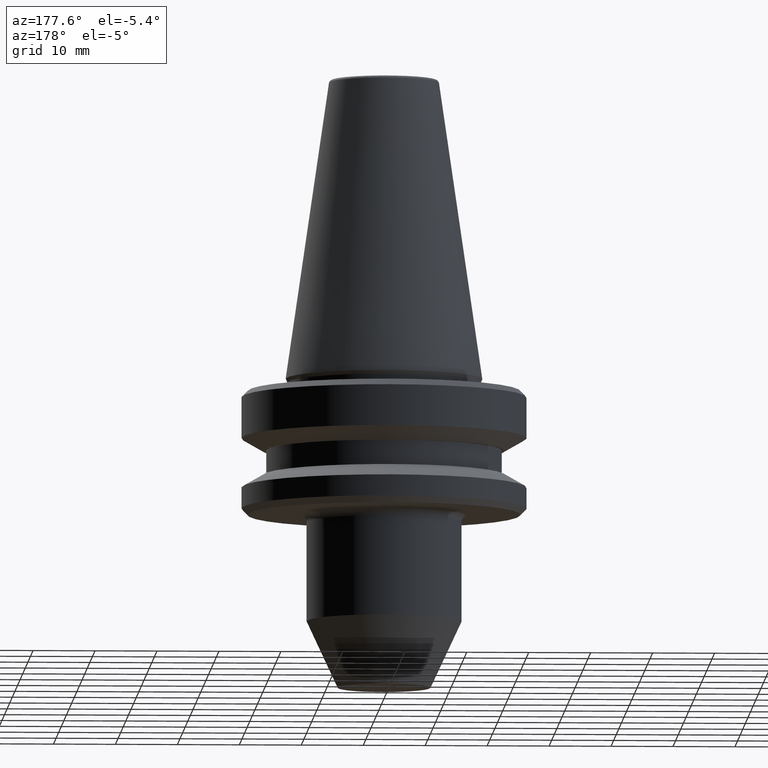
[diagram: clean part render]
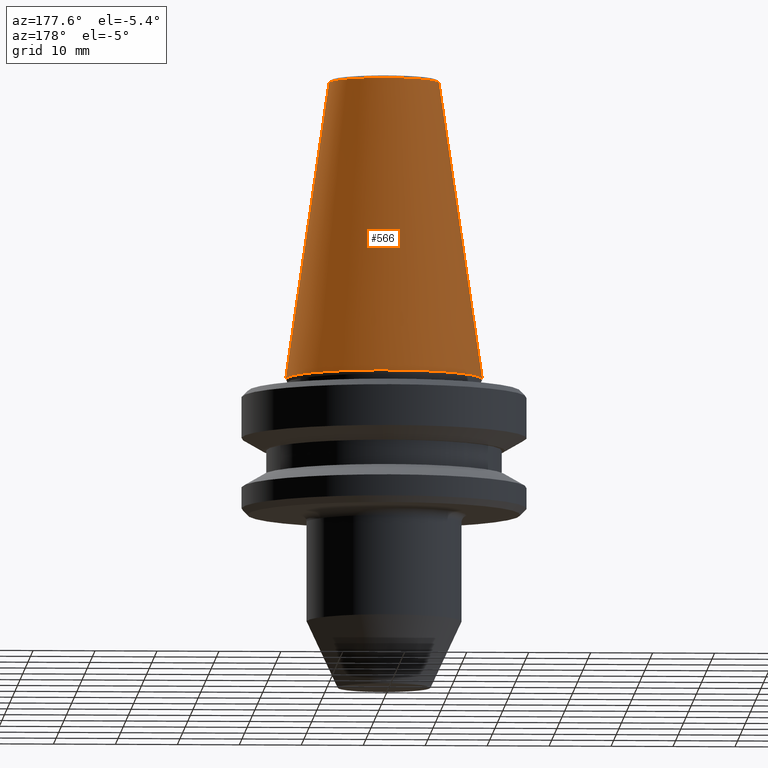
[diagram: same view with one face highlighted and labeled with its STEP entity id]
A machine part, auxiliary view. The second image highlights one B-rep face of the part: STEP entity #566.
In plain terms, the highlighted conical surface has half-angle 8.297 deg.
Its self-contained STEP definition (entity closure, byte-faithful):
#8 = DIRECTION ( 'NONE',  ( 0.0000000000000000000, 0.0000000000000000000, -1.000000000000000000 ) ) ;
#59 = VECTOR ( 'NONE', #317, 1000.000000000000000 ) ;
#86 = CARTESIAN_POINT ( 'NONE',  ( 8.878994820583409700, 1.515745026156880400E-015, 47.97215411344146900 ) ) ;
#90 = LINE ( 'NONE', #259, #514 ) ;
#142 = ORIENTED_EDGE ( 'NONE', *, *, #633, .F. ) ;
#202 = VERTEX_POINT ( 'NONE', #600 ) ;
#210 = EDGE_LOOP ( 'NONE', ( #410, #731, #641, #142 ) ) ;
#259 = CARTESIAN_POINT ( 'NONE',  ( -8.878994820583409700, 0.0000000000000000000, 47.97215411344146900 ) ) ;
#306 = FACE_OUTER_BOUND ( 'NONE', #210, .T. ) ;
#317 = DIRECTION ( 'NONE',  ( 0.1443082268835123000, 1.767266081435233600E-017, -0.9895327865481450300 ) ) ;
#349 = AXIS2_PLACEMENT_3D ( 'NONE', #764, #825, #685 ) ;
#380 = DIRECTION ( 'NONE',  ( -0.0000000000000000000, -0.0000000000000000000, 1.000000000000000000 ) ) ;
#404 = CARTESIAN_POINT ( 'NONE',  ( 15.87499999999997500, 0.0000000000000000000, 0.0000000000000000000 ) ) ;
#410 = ORIENTED_EDGE ( 'NONE', *, *, #885, .F. ) ;
#456 = CARTESIAN_POINT ( 'NONE',  ( -15.87499999999997500, 1.944126793646420500E-015, 0.0000000000000000000 ) ) ;
#458 = LINE ( 'NONE', #782, #59 ) ;
#487 = CONICAL_SURFACE ( 'NONE', #557, 8.878994820583409700, 0.1448138461595645800 ) ;
#503 = CIRCLE ( 'NONE', #962, 8.878994820583409700 ) ;
#514 = VECTOR ( 'NONE', #562, 1000.000000000000000 ) ;
#528 = CARTESIAN_POINT ( 'NONE',  ( 0.0000000000000000000, 0.0000000000000000000, 47.97215411344146900 ) ) ;
#539 = EDGE_CURVE ( 'NONE', #614, #866, #769, .T. ) ;
#552 = DIRECTION ( 'NONE',  ( -1.000000000000000000, 0.0000000000000000000, 0.0000000000000000000 ) ) ;
#557 = AXIS2_PLACEMENT_3D ( 'NONE', #528, #8, #552 ) ;
#562 = DIRECTION ( 'NONE',  ( -0.1443082268835123000, 0.0000000000000000000, -0.9895327865481450300 ) ) ;
#566 = ADVANCED_FACE ( 'NONE', ( #306 ), #487, .T. ) ;
#600 = CARTESIAN_POINT ( 'NONE',  ( -8.878994820583409700, 0.0000000000000000000, 47.97215411344146900 ) ) ;
#614 = VERTEX_POINT ( 'NONE', #404 ) ;
#633 = EDGE_CURVE ( 'NONE', #202, #866, #90, .T. ) ;
#641 = ORIENTED_EDGE ( 'NONE', *, *, #539, .T. ) ;
#685 = DIRECTION ( 'NONE',  ( 1.000000000000000000, 0.0000000000000000000, 0.0000000000000000000 ) ) ;
#731 = ORIENTED_EDGE ( 'NONE', *, *, #952, .T. ) ;
#764 = CARTESIAN_POINT ( 'NONE',  ( 0.0000000000000000000, 0.0000000000000000000, 0.0000000000000000000 ) ) ;
#769 = CIRCLE ( 'NONE', #349, 15.87499999999997500 ) ;
#782 = CARTESIAN_POINT ( 'NONE',  ( 8.878994820583409700, 1.087363258667340000E-015, 47.97215411344146900 ) ) ;
#825 = DIRECTION ( 'NONE',  ( -0.0000000000000000000, -0.0000000000000000000, 1.000000000000000000 ) ) ;
#851 = CARTESIAN_POINT ( 'NONE',  ( 0.0000000000000000000, 0.0000000000000000000, 47.97215411344146900 ) ) ;
#866 = VERTEX_POINT ( 'NONE', #456 ) ;
#885 = EDGE_CURVE ( 'NONE', #892, #202, #503, .T. ) ;
#892 = VERTEX_POINT ( 'NONE', #86 ) ;
#931 = DIRECTION ( 'NONE',  ( 1.000000000000000000, 0.0000000000000000000, 0.0000000000000000000 ) ) ;
#952 = EDGE_CURVE ( 'NONE', #892, #614, #458, .T. ) ;
#962 = AXIS2_PLACEMENT_3D ( 'NONE', #851, #380, #931 ) ;